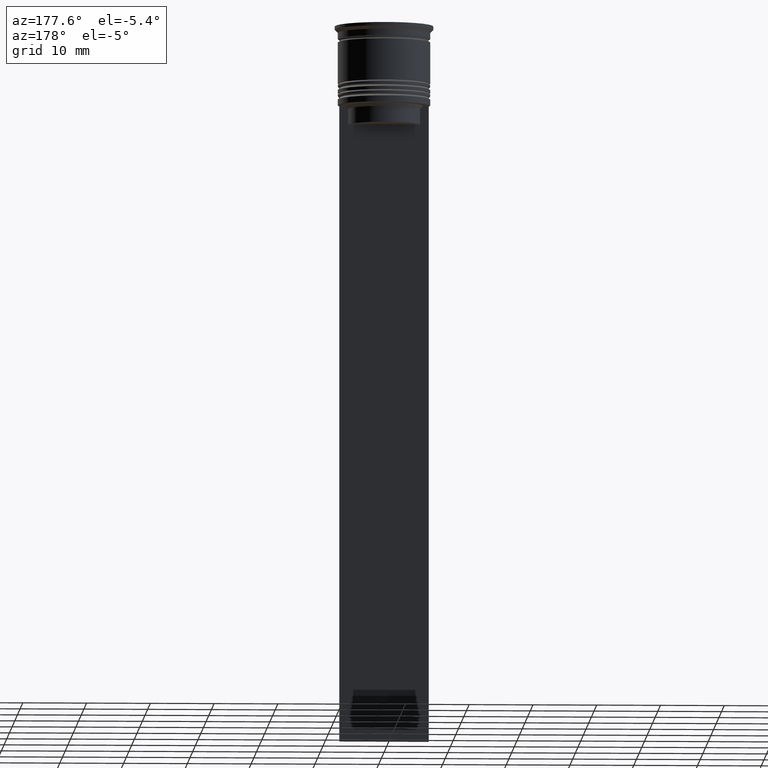
[diagram: clean part render]
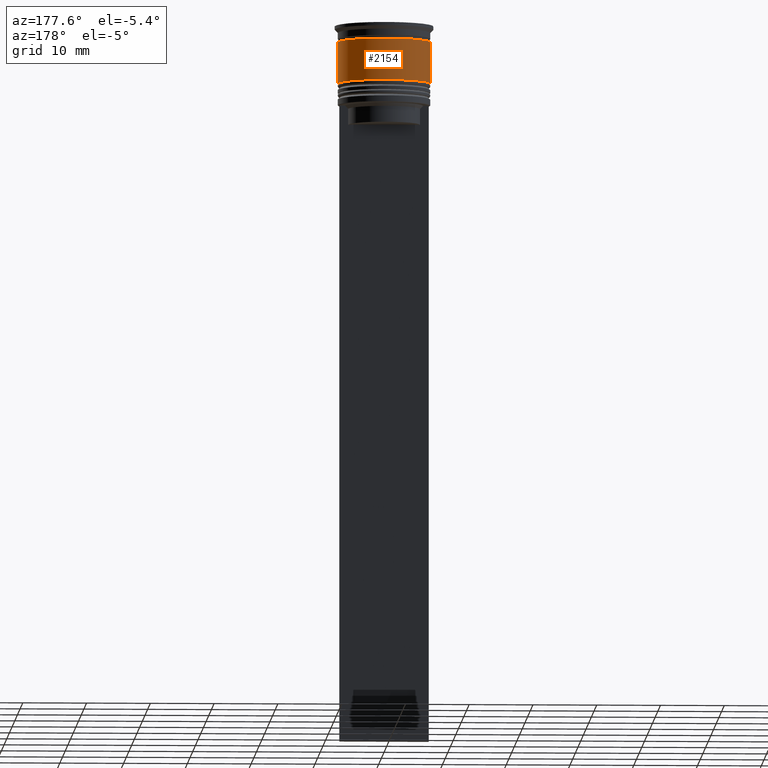
[diagram: same view with one face highlighted and labeled with its STEP entity id]
A machine part, auxiliary view. The second image highlights one B-rep face of the part: STEP entity #2154.
In plain terms, the highlighted cylindrical surface (partial cylindrical patch) has radius 7.25 mm, axis along (-0, -0, 1).
Its self-contained STEP definition (entity closure, byte-faithful):
#99 = ORIENTED_EDGE ( 'NONE', *, *, #1892, .T. ) ;
#109 = DIRECTION ( 'NONE',  ( 1.000000000000000000, 0.000000000000000000, 0.000000000000000000 ) ) ;
#263 = CARTESIAN_POINT ( 'NONE',  ( 0.000000000000000000, 0.000000000000000000, -2.500000000000000444 ) ) ;
#297 = EDGE_CURVE ( 'NONE', #1115, #2214, #1991, .T. ) ;
#460 = ORIENTED_EDGE ( 'NONE', *, *, #805, .T. ) ;
#476 = CARTESIAN_POINT ( 'NONE',  ( 0.000000000000000000, 0.000000000000000000, -9.000000000000001776 ) ) ;
#534 = AXIS2_PLACEMENT_3D ( 'NONE', #1379, #695, #109 ) ;
#695 = DIRECTION ( 'NONE',  ( -0.000000000000000000, -0.000000000000000000, 1.000000000000000000 ) ) ;
#723 = LINE ( 'NONE', #2342, #1891 ) ;
#805 = EDGE_CURVE ( 'NONE', #1107, #1028, #2148, .T. ) ;
#849 = CARTESIAN_POINT ( 'NONE',  ( -7.249999999999997335, 8.878689293818308102E-16, -2.500000000000000444 ) ) ;
#1015 = DIRECTION ( 'NONE',  ( -0.000000000000000000, -0.000000000000000000, 1.000000000000000000 ) ) ;
#1028 = VERTEX_POINT ( 'NONE', #2121 ) ;
#1107 = VERTEX_POINT ( 'NONE', #1458 ) ;
#1115 = VERTEX_POINT ( 'NONE', #1469 ) ;
#1123 = DIRECTION ( 'NONE',  ( -0.000000000000000000, -0.000000000000000000, 1.000000000000000000 ) ) ;
#1158 = FACE_OUTER_BOUND ( 'NONE', #1233, .T. ) ;
#1204 = DIRECTION ( 'NONE',  ( -0.000000000000000000, -0.000000000000000000, 1.000000000000000000 ) ) ;
#1220 = CYLINDRICAL_SURFACE ( 'NONE', #534, 7.249999999999999112 ) ;
#1233 = EDGE_LOOP ( 'NONE', ( #460, #99, #2062, #2059 ) ) ;
#1379 = CARTESIAN_POINT ( 'NONE',  ( 0.000000000000000000, 0.000000000000000000, 0.000000000000000000 ) ) ;
#1442 = VECTOR ( 'NONE', #1912, 1000.000000000000000 ) ;
#1458 = CARTESIAN_POINT ( 'NONE',  ( 7.250000000000000888, 0.000000000000000000, -9.000000000000001776 ) ) ;
#1469 = CARTESIAN_POINT ( 'NONE',  ( 7.249999999999997335, 0.000000000000000000, -2.500000000000000444 ) ) ;
#1585 = AXIS2_PLACEMENT_3D ( 'NONE', #476, #1015, #1899 ) ;
#1759 = DIRECTION ( 'NONE',  ( 1.000000000000000000, 0.000000000000000000, 0.000000000000000000 ) ) ;
#1891 = VECTOR ( 'NONE', #1123, 1000.000000000000000 ) ;
#1892 = EDGE_CURVE ( 'NONE', #1028, #2214, #723, .T. ) ;
#1899 = DIRECTION ( 'NONE',  ( 1.000000000000000000, 0.000000000000000000, 0.000000000000000000 ) ) ;
#1912 = DIRECTION ( 'NONE',  ( -0.000000000000000000, -0.000000000000000000, 1.000000000000000000 ) ) ;
#1991 = CIRCLE ( 'NONE', #2297, 7.249999999999997335 ) ;
#2045 = EDGE_CURVE ( 'NONE', #1107, #1115, #2233, .T. ) ;
#2059 = ORIENTED_EDGE ( 'NONE', *, *, #2045, .F. ) ;
#2062 = ORIENTED_EDGE ( 'NONE', *, *, #297, .F. ) ;
#2086 = CARTESIAN_POINT ( 'NONE',  ( 7.249999999999999112, 0.000000000000000000, 0.000000000000000000 ) ) ;
#2121 = CARTESIAN_POINT ( 'NONE',  ( -7.250000000000000888, 8.878689293818312046E-16, -9.000000000000001776 ) ) ;
#2148 = CIRCLE ( 'NONE', #1585, 7.250000000000000888 ) ;
#2154 = ADVANCED_FACE ( 'NONE', ( #1158 ), #1220, .T. ) ;
#2214 = VERTEX_POINT ( 'NONE', #849 ) ;
#2233 = LINE ( 'NONE', #2086, #1442 ) ;
#2297 = AXIS2_PLACEMENT_3D ( 'NONE', #263, #1204, #1759 ) ;
#2342 = CARTESIAN_POINT ( 'NONE',  ( -7.249999999999999112, 8.878689293818310074E-16, 0.000000000000000000 ) ) ;